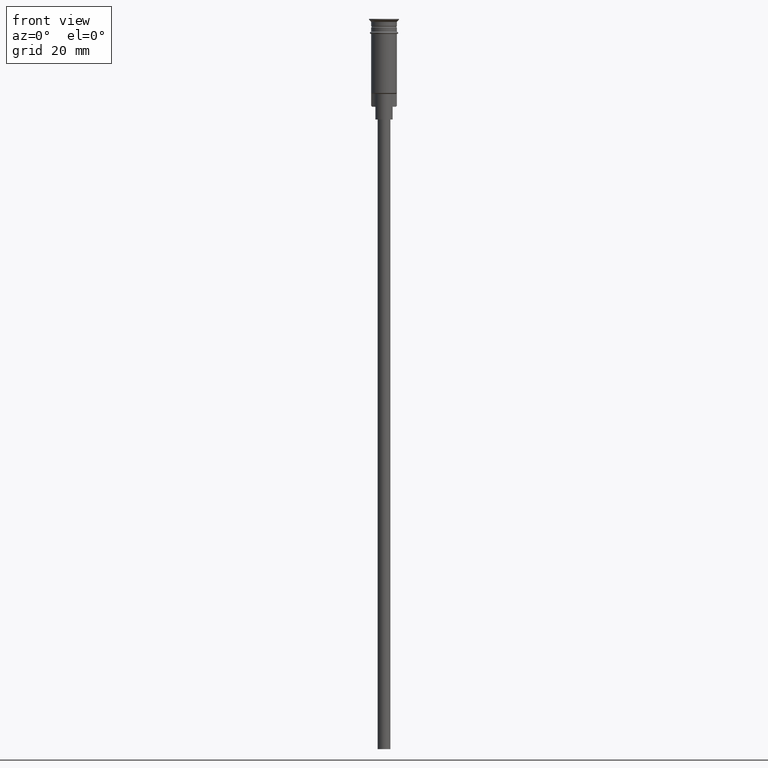
[diagram: clean part render]
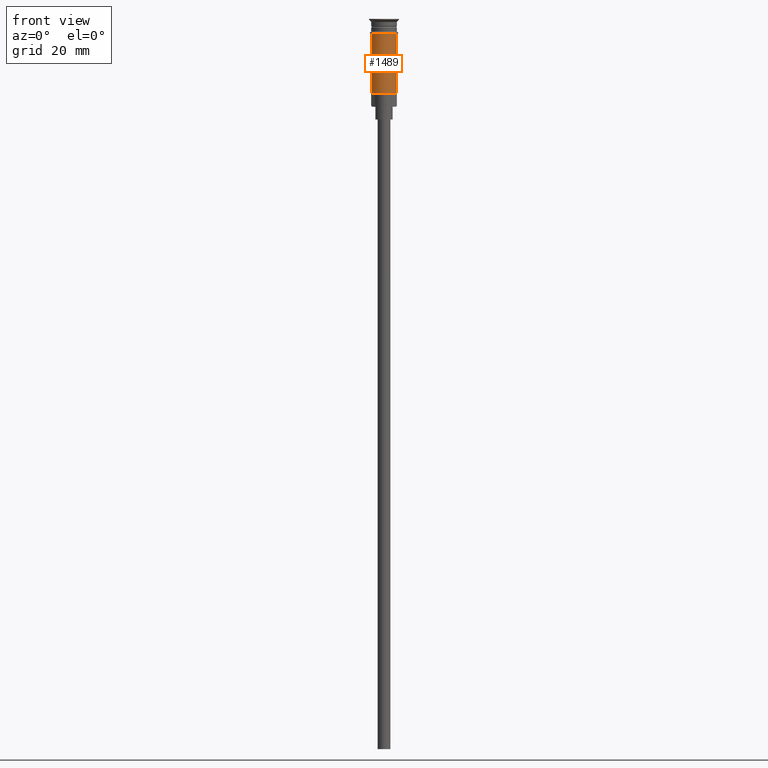
[diagram: same view with one face highlighted and labeled with its STEP entity id]
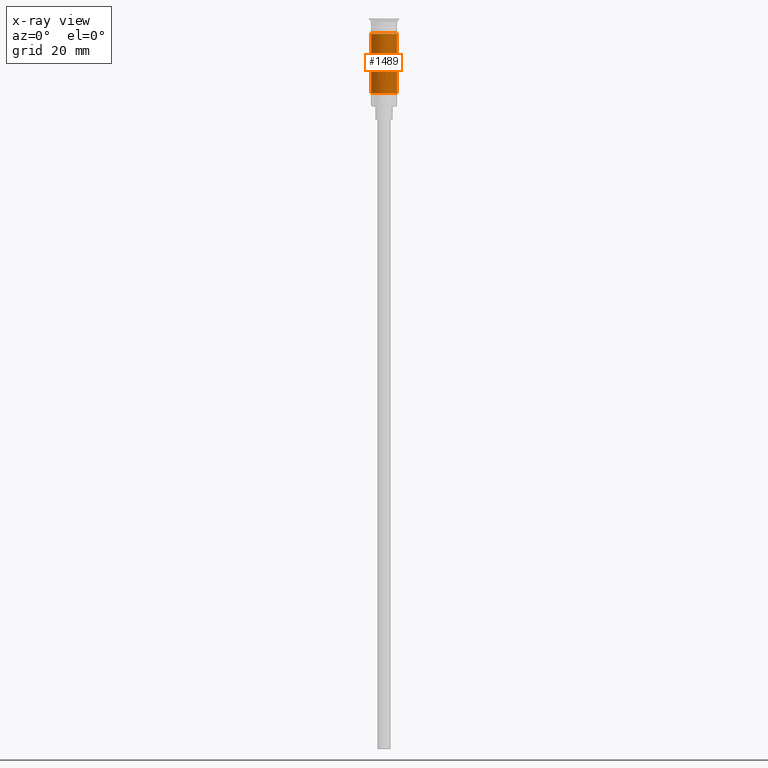
[diagram: x-ray of the same camera — body ghosted, the highlighted face saturated]
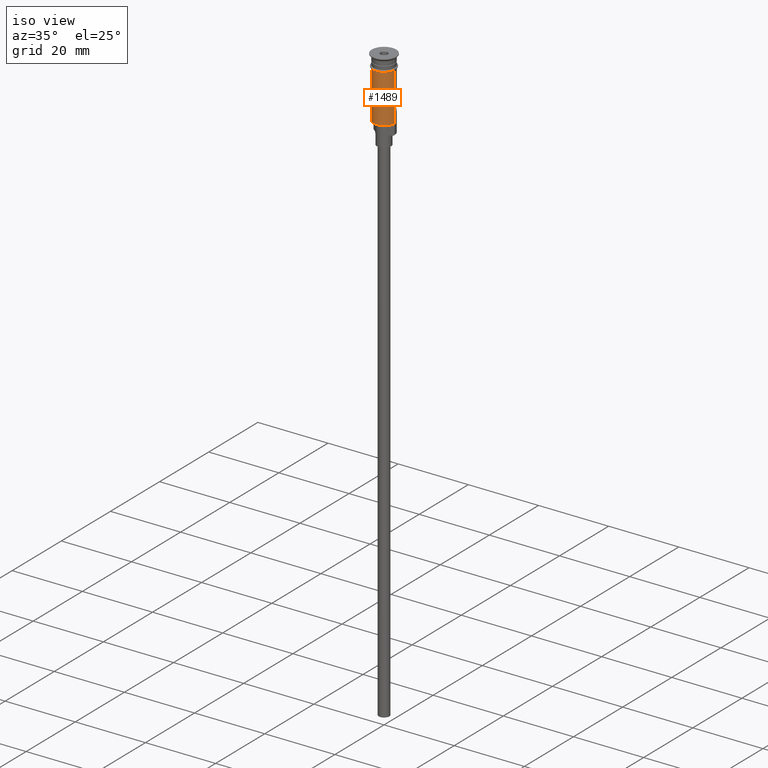
[diagram: same view with one face highlighted and labeled with its STEP entity id]
A machine part, front view. The second image highlights one B-rep face of the part: STEP entity #1489.
The next image is the same camera in x-ray: the body ghosted, the highlighted face saturated — about 0% of this face is hidden behind the body in this view.
A second angle (iso view) of the same face is appended — the face is thin or edge-on in the first view.
In plain terms, the highlighted cylindrical surface (edge-blend (fillet) strip) has radius 3 mm, axis along (-0, -0, 1).
Its self-contained STEP definition (entity closure, byte-faithful):
#56 = CYLINDRICAL_SURFACE ( 'NONE', #123, 2.999999999999996891 ) ;
#65 = LINE ( 'NONE', #1309, #304 ) ;
#123 = AXIS2_PLACEMENT_3D ( 'NONE', #1303, #1392, #1399 ) ;
#128 = VERTEX_POINT ( 'NONE', #1367 ) ;
#146 = CARTESIAN_POINT ( 'NONE',  ( 0.000000000000000000, 0.000000000000000000, -3.499999999999998668 ) ) ;
#158 = ORIENTED_EDGE ( 'NONE', *, *, #1450, .F. ) ;
#272 = ORIENTED_EDGE ( 'NONE', *, *, #464, .T. ) ;
#274 = ORIENTED_EDGE ( 'NONE', *, *, #597, .T. ) ;
#304 = VECTOR ( 'NONE', #434, 1000.000000000000000 ) ;
#393 = FACE_OUTER_BOUND ( 'NONE', #1295, .T. ) ;
#421 = LINE ( 'NONE', #1255, #1522 ) ;
#434 = DIRECTION ( 'NONE',  ( -0.000000000000000000, -0.000000000000000000, 1.000000000000000000 ) ) ;
#464 = EDGE_CURVE ( 'NONE', #1147, #1562, #421, .T. ) ;
#597 = EDGE_CURVE ( 'NONE', #621, #1147, #612, .T. ) ;
#612 = CIRCLE ( 'NONE', #1261, 2.999999999999996891 ) ;
#621 = VERTEX_POINT ( 'NONE', #873 ) ;
#715 = ORIENTED_EDGE ( 'NONE', *, *, #893, .F. ) ;
#789 = CARTESIAN_POINT ( 'NONE',  ( 2.999999999999996891, 3.673940397442055924E-16, -17.30000000000000782 ) ) ;
#873 = CARTESIAN_POINT ( 'NONE',  ( -2.999999999999995115, 0.000000000000000000, -17.30000000000000782 ) ) ;
#893 = EDGE_CURVE ( 'NONE', #621, #128, #65, .T. ) ;
#932 = CARTESIAN_POINT ( 'NONE',  ( 0.000000000000000000, 0.000000000000000000, -17.30000000000000782 ) ) ;
#1059 = DIRECTION ( 'NONE',  ( -0.000000000000000000, -0.000000000000000000, 1.000000000000000000 ) ) ;
#1066 = DIRECTION ( 'NONE',  ( -1.000000000000000000, 0.000000000000000000, 0.000000000000000000 ) ) ;
#1147 = VERTEX_POINT ( 'NONE', #789 ) ;
#1226 = DIRECTION ( 'NONE',  ( 1.000000000000000000, 0.000000000000000000, 0.000000000000000000 ) ) ;
#1255 = CARTESIAN_POINT ( 'NONE',  ( 2.999999999999996891, 0.000000000000000000, 0.000000000000000000 ) ) ;
#1261 = AXIS2_PLACEMENT_3D ( 'NONE', #932, #1059, #1066 ) ;
#1271 = DIRECTION ( 'NONE',  ( -0.000000000000000000, -0.000000000000000000, 1.000000000000000000 ) ) ;
#1295 = EDGE_LOOP ( 'NONE', ( #715, #274, #272, #158 ) ) ;
#1303 = CARTESIAN_POINT ( 'NONE',  ( 0.000000000000000000, 0.000000000000000000, 0.000000000000000000 ) ) ;
#1309 = CARTESIAN_POINT ( 'NONE',  ( -2.999999999999996891, 3.673940397442055924E-16, 0.000000000000000000 ) ) ;
#1351 = DIRECTION ( 'NONE',  ( -0.000000000000000000, -0.000000000000000000, 1.000000000000000000 ) ) ;
#1367 = CARTESIAN_POINT ( 'NONE',  ( -2.999999999999999112, 3.673940397442058389E-16, -3.499999999999998668 ) ) ;
#1392 = DIRECTION ( 'NONE',  ( -0.000000000000000000, -0.000000000000000000, 1.000000000000000000 ) ) ;
#1399 = DIRECTION ( 'NONE',  ( 1.000000000000000000, 0.000000000000000000, 0.000000000000000000 ) ) ;
#1450 = EDGE_CURVE ( 'NONE', #128, #1562, #1465, .T. ) ;
#1465 = CIRCLE ( 'NONE', #1576, 2.999999999999998668 ) ;
#1489 = ADVANCED_FACE ( 'NONE', ( #393 ), #56, .T. ) ;
#1522 = VECTOR ( 'NONE', #1271, 1000.000000000000000 ) ;
#1528 = CARTESIAN_POINT ( 'NONE',  ( 2.999999999999998668, 0.000000000000000000, -3.499999999999998668 ) ) ;
#1562 = VERTEX_POINT ( 'NONE', #1528 ) ;
#1576 = AXIS2_PLACEMENT_3D ( 'NONE', #146, #1351, #1226 ) ;